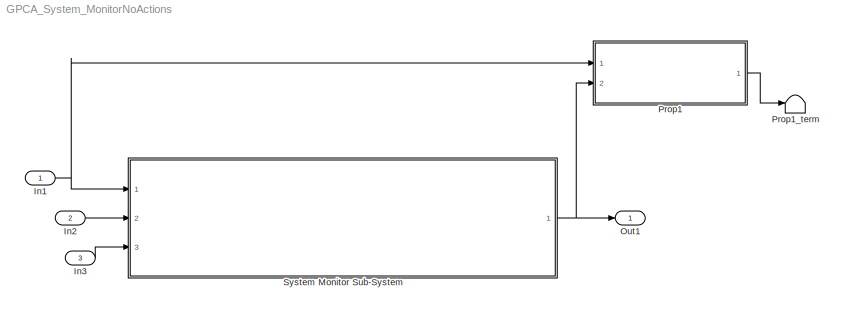
MODEL GPCA_System_MonitorNoActions
KIND model
BLOCK [Inport] In1
  IconDisplay = Port number
  OutDataTypeStr = boolean
  SID = 14
BLOCK [Inport] In2
  IconDisplay = Port number
  OutDataTypeStr = boolean
  Port = 2
  SID = 15
BLOCK [Inport] In3
  IconDisplay = Port number
  OutDataTypeStr = boolean
  Port = 3
  SID = 16
BLOCK [Outport] Out1
  IconDisplay = Port number
  SID = 17
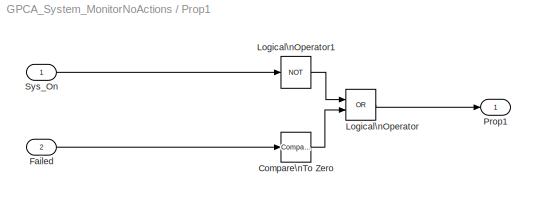
BLOCK [SubSystem] Prop1
  Ports = [2, 1]
  RequestExecContextInheritance = off
  SID = 4
  TreatAsAtomicUnit = on
  Variant = off
BLOCK [Reference] Prop1/Compare\nTo Zero  REF=simulink/Logic and Bit\nOperations/Compare\nTo Zero
  OutDataTypeStr = boolean
  Ports = [1, 1]
  SID = 13
  SourceBlock = simulink/Logic and Bit\nOperations/Compare\nTo Zero
  SourceProductBaseCode = SL
  SourceProductName = Simulink
  SourceType = Compare To Zero
  ZeroCross = on
  relop = ==
BLOCK [Inport] Prop1/Failed
  IconDisplay = Port number
  Port = 2
  SID = 7
BLOCK [Logic] Prop1/Logical\nOperator
  AllPortsSameDT = off
  Operator = OR
  OutDataTypeStr = boolean
  Ports = [2, 1]
  SID = 11
BLOCK [Logic] Prop1/Logical\nOperator1
  AllPortsSameDT = off
  Operator = NOT
  OutDataTypeStr = boolean
  Ports = [1, 1]
  SID = 12
BLOCK [Outport] Prop1/Prop1
  IconDisplay = Port number
  SID = 9
BLOCK [Inport] Prop1/Sys_On
  IconDisplay = Port number
  SID = 5
BLOCK [Terminator] Prop1_term
  SID = 10
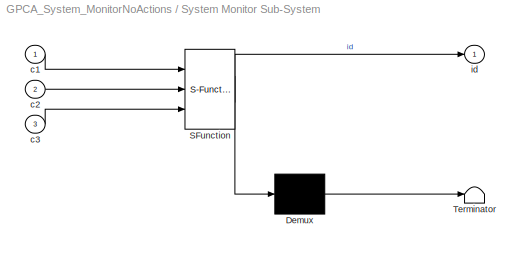
BLOCK [SubSystem] System Monitor Sub-System
  ErrorFcn = Stateflow.Translate.translate
  PermitHierarchicalResolution = ExplicitOnly
  Ports = [3, 1]
  RequestExecContextInheritance = off
  SFBlockType = Chart
  SID = 1
  TreatAsAtomicUnit = on
  Variant = off
BLOCK [Demux] System Monitor Sub-System/ Demux 
  Outputs = 1
  Ports = [1, 1]
  SID = 1::51
BLOCK [S-Function] System Monitor Sub-System/ SFunction 
  EnableBusSupport = on
  FunctionName = sf_sfun
  PortCounts = [3 2]
  Ports = [3, 2]
  SFcnIsStateOwnerBlock = off
  SFunctionDeploymentMode = off
  SID = 1::50
  Tag = Stateflow S-Function GPCA_System_MonitorNoActions 1
BLOCK [Terminator] System Monitor Sub-System/ Terminator 
  SID = 1::52
BLOCK [Inport] System Monitor Sub-System/c1
  IconDisplay = Port number
  SID = 1::53
BLOCK [Inport] System Monitor Sub-System/c2
  IconDisplay = Port number
  Port = 2
  SID = 1::54
BLOCK [Inport] System Monitor Sub-System/c3
  IconDisplay = Port number
  Port = 3
  SID = 1::55
BLOCK [Outport] System Monitor Sub-System/id
  IconDisplay = Port number
  SID = 1::56
NET In1:1 -> Prop1:1, System Monitor Sub-System:1
LINE In2:1 -> System Monitor Sub-System:2
LINE In3:1 -> System Monitor Sub-System:3
LINE Prop1/Compare\nTo Zero:1 -> Prop1/Logical\nOperator:2
LINE Prop1/Failed:1 -> Prop1/Compare\nTo Zero:1
LINE Prop1/Logical\nOperator1:1 -> Prop1/Logical\nOperator:1
LINE Prop1/Logical\nOperator:1 -> Prop1/Prop1:1
LINE Prop1/Sys_On:1 -> Prop1/Logical\nOperator1:1
LINE Prop1:1 -> Prop1_term:1
LINE System Monitor Sub-System/ Demux :1 -> System Monitor Sub-System/ Terminator :1
LINE System Monitor Sub-System/ SFunction :1 -> System Monitor Sub-System/ Demux :1
LINE System Monitor Sub-System/ SFunction :2 -> System Monitor Sub-System/id:1
LINE System Monitor Sub-System/c1:1 -> System Monitor Sub-System/ SFunction :1
LINE System Monitor Sub-System/c2:1 -> System Monitor Sub-System/ SFunction :2
LINE System Monitor Sub-System/c3:1 -> System Monitor Sub-System/ SFunction :3
NET System Monitor Sub-System:1 -> Out1:1, Prop1:2
note: NET lines group one-source signal fan-out (src -> all destinations, sorted); 1:1 wires keep LINE
CHART System Monitor Sub-System states=2 transitions=4
  STATE_LABEL 'System_Monitor\\nentry: id=1;'
  STATE_LABEL 'NOT_ON\\nentry: id=0;'
